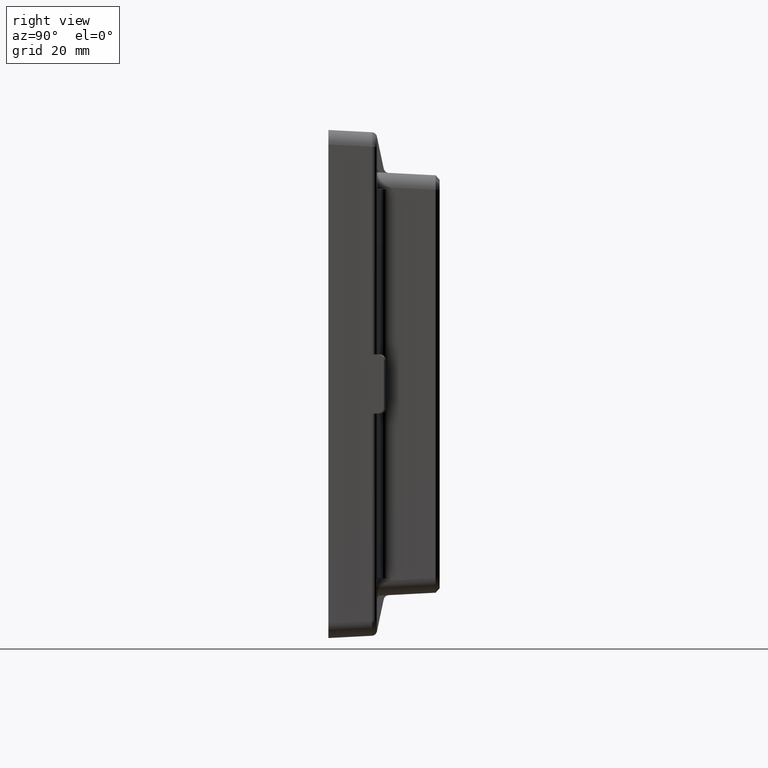
[diagram: clean part render]
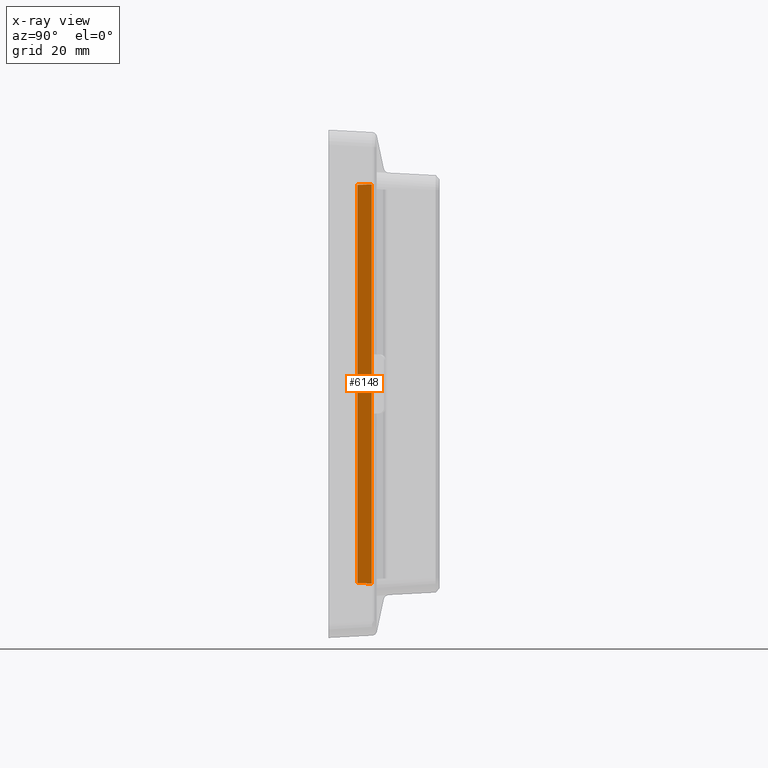
[diagram: x-ray — body ghosted, one internal face saturated and labeled with its STEP entity id]
A machine part, right view, then the same camera in x-ray: the body is ghosted and one INTERNAL B-rep face — a face not visible from any outside direction — is saturated and labeled: STEP entity #6148.
In plain terms, the highlighted planar face has unit normal (0.9994, -0.0349, 0).
Its self-contained STEP definition (entity closure, byte-faithful):
#552 = ORIENTED_EDGE ( 'NONE', *, *, #1987, .T. ) ;
#889 = FACE_OUTER_BOUND ( 'NONE', #6278, .T. ) ;
#955 = CARTESIAN_POINT ( 'NONE',  ( 85.67227447579976700, -5.076723098739977400, 74.91701477928886300 ) ) ;
#1213 = EDGE_CURVE ( 'NONE', #2780, #5249, #3625, .T. ) ;
#1288 = VECTOR ( 'NONE', #2978, 1000.000000000000000 ) ;
#1397 = ORIENTED_EDGE ( 'NONE', *, *, #4129, .F. ) ;
#1709 = DIRECTION ( 'NONE',  ( 0.03487934512674303900, 0.9988137613916394700, -0.03397795370846536100 ) ) ;
#1783 = VECTOR ( 'NONE', #4023, 1000.000000000000000 ) ;
#1987 = EDGE_CURVE ( 'NONE', #4438, #2780, #4340, .T. ) ;
#2116 = CARTESIAN_POINT ( 'NONE',  ( 85.95431986137954500, 3.000000000000000000, -75.19177122956311600 ) ) ;
#2180 = VERTEX_POINT ( 'NONE', #5943 ) ;
#2315 = LINE ( 'NONE', #955, #3911 ) ;
#2780 = VERTEX_POINT ( 'NONE', #2116 ) ;
#2785 = DIRECTION ( 'NONE',  ( -0.03487934512674303900, -0.9988137613916394700, -0.03397795370846536100 ) ) ;
#2891 = CARTESIAN_POINT ( 'NONE',  ( 85.95431986137954500, 3.000000000000000000, -74.49999999999998600 ) ) ;
#2893 = AXIS2_PLACEMENT_3D ( 'NONE', #5826, #2964, #4121 ) ;
#2964 = DIRECTION ( 'NONE',  ( 0.9993908270190957600, -0.03489949670250105200, 0.0000000000000000000 ) ) ;
#2978 = DIRECTION ( 'NONE',  ( 0.0000000000000000000, 0.0000000000000000000, -1.000000000000000000 ) ) ;
#3625 = LINE ( 'NONE', #6143, #6495 ) ;
#3911 = VECTOR ( 'NONE', #2785, 1000.000000000000100 ) ;
#4023 = DIRECTION ( 'NONE',  ( 0.0000000000000000000, -0.0000000000000000000, -1.000000000000000000 ) ) ;
#4121 = DIRECTION ( 'NONE',  ( 0.03489949670250104600, 0.9993908270190956500, 0.0000000000000000000 ) ) ;
#4129 = EDGE_CURVE ( 'NONE', #2180, #5249, #4288, .T. ) ;
#4288 = LINE ( 'NONE', #6897, #1783 ) ;
#4340 = LINE ( 'NONE', #2891, #1288 ) ;
#4416 = EDGE_CURVE ( 'NONE', #2180, #4438, #2315, .T. ) ;
#4438 = VERTEX_POINT ( 'NONE', #7383 ) ;
#5211 = ORIENTED_EDGE ( 'NONE', *, *, #1213, .T. ) ;
#5249 = VERTEX_POINT ( 'NONE', #5380 ) ;
#5380 = CARTESIAN_POINT ( 'NONE',  ( 86.14164856715240100, 8.364392265672030600, -75.37425877541261300 ) ) ;
#5826 = CARTESIAN_POINT ( 'NONE',  ( 85.84955755290430100, 3.469446951953614200E-015, -74.49999999999998600 ) ) ;
#5943 = CARTESIAN_POINT ( 'NONE',  ( 86.14164856715240100, 8.364392265672030600, 75.37425877541262800 ) ) ;
#6143 = CARTESIAN_POINT ( 'NONE',  ( 85.84885866314037600, -0.02001358429642836200, -75.08903547868281700 ) ) ;
#6148 = ADVANCED_FACE ( 'NONE', ( #889 ), #7028, .T. ) ;
#6278 = EDGE_LOOP ( 'NONE', ( #552, #5211, #1397, #6384 ) ) ;
#6384 = ORIENTED_EDGE ( 'NONE', *, *, #4416, .T. ) ;
#6495 = VECTOR ( 'NONE', #1709, 1000.000000000000100 ) ;
#6897 = CARTESIAN_POINT ( 'NONE',  ( 86.14164856715240100, 8.364392265672030600, -74.49999999999998600 ) ) ;
#7028 = PLANE ( 'NONE',  #2893 ) ;
#7383 = CARTESIAN_POINT ( 'NONE',  ( 85.95431986137954500, 3.000000000000000000, 75.19177122956308800 ) ) ;